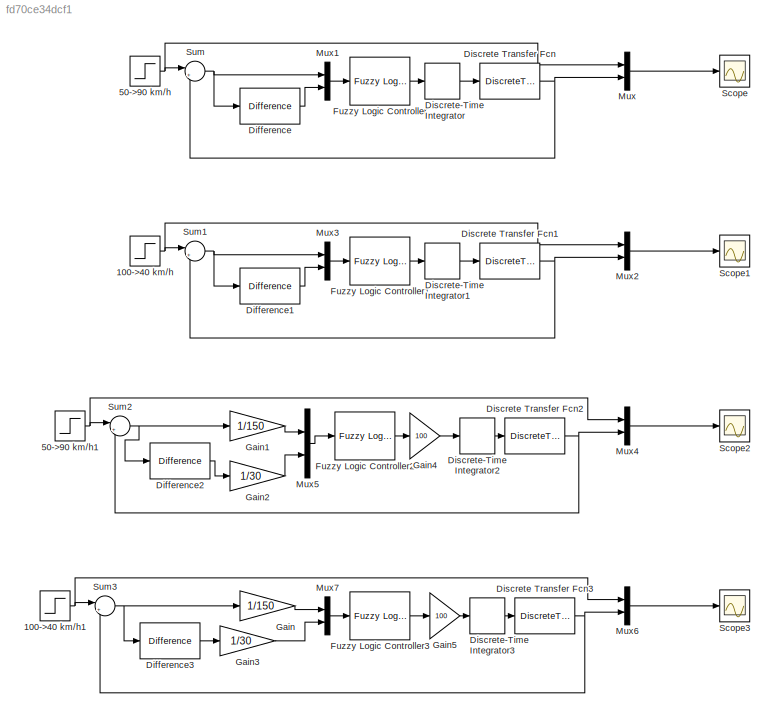
MODEL slx_fd70ce34dcf1
KIND model
BLOCK [Step] 100->40 km//h
  After = 40
  Before = 100
  SampleTime = 1
BLOCK [Step] 100->40 km//h1
  After = 40
  Before = 100
  SampleTime = 1
BLOCK [Step] 50->90 km//h
  After = 90
  Before = 50
  SampleTime = 1
BLOCK [Step] 50->90 km//h1
  After = 90
  Before = 50
  SampleTime = 1
BLOCK [Reference] Difference  REF=simulink/Discrete/Difference
  DoSatur = off
  ICPrevInput = 0.0
  InputProcessing = Inherited
  LockScale = off
  OutDataType = fixdt(1, 16)
  OutDataTypeStr = Inherit: Inherit via internal rule
  OutMax = []
  OutMin = []
  OutScaling = 2^-10
  OutputDataTypeScalingMode = Inherit via internal rule
  Ports = [1, 1]
  RndMeth = Floor
  SourceBlock = simulink/Discrete/Difference
  SourceType = Difference
BLOCK [Reference] Difference1  REF=simulink/Discrete/Difference
  DoSatur = off
  ICPrevInput = 0.0
  InputProcessing = Inherited
  LockScale = off
  OutDataType = fixdt(1, 16)
  OutDataTypeStr = Inherit: Inherit via internal rule
  OutMax = []
  OutMin = []
  OutScaling = 2^-10
  OutputDataTypeScalingMode = Inherit via internal rule
  Ports = [1, 1]
  RndMeth = Floor
  SourceBlock = simulink/Discrete/Difference
  SourceType = Difference
BLOCK [Reference] Difference2  REF=simulink/Discrete/Difference
  DoSatur = off
  ICPrevInput = 0.0
  InputProcessing = Inherited
  LockScale = off
  OutDataType = fixdt(1, 16)
  OutDataTypeStr = Inherit: Inherit via internal rule
  OutMax = []
  OutMin = []
  OutScaling = 2^-10
  OutputDataTypeScalingMode = Inherit via internal rule
  Ports = [1, 1]
  RndMeth = Floor
  SourceBlock = simulink/Discrete/Difference
  SourceType = Difference
BLOCK [Reference] Difference3  REF=simulink/Discrete/Difference
  DoSatur = off
  ICPrevInput = 0.0
  InputProcessing = Inherited
  LockScale = off
  OutDataType = fixdt(1, 16)
  OutDataTypeStr = Inherit: Inherit via internal rule
  OutMax = []
  OutMin = []
  OutScaling = 2^-10
  OutputDataTypeScalingMode = Inherit via internal rule
  Ports = [1, 1]
  RndMeth = Floor
  SourceBlock = simulink/Discrete/Difference
  SourceType = Difference
BLOCK [DiscreteTransferFcn] Discrete Transfer Fcn
  Denominator = [1 -0.933]
  InputPortMap = u0
  Numerator = [0.133]
  Ports = [1, 1]
  SampleTime = 1
BLOCK [DiscreteTransferFcn] Discrete Transfer Fcn1
  Denominator = [1 -0.933]
  InputPortMap = u0
  Numerator = [0.133]
  Ports = [1, 1]
  SampleTime = 1
BLOCK [DiscreteTransferFcn] Discrete Transfer Fcn2
  Denominator = [1 -0.933]
  InputPortMap = u0
  Numerator = [0.133]
  Ports = [1, 1]
  SampleTime = 1
BLOCK [DiscreteTransferFcn] Discrete Transfer Fcn3
  Denominator = [1 -0.933]
  InputPortMap = u0
  Numerator = [0.133]
  Ports = [1, 1]
  SampleTime = 1
BLOCK [DiscreteIntegrator] Discrete-Time Integrator
  InitialConditionSetting = State (most efficient)
  Ports = [1, 1]
BLOCK [DiscreteIntegrator] Discrete-Time Integrator1
  InitialConditionSetting = State (most efficient)
  Ports = [1, 1]
BLOCK [DiscreteIntegrator] Discrete-Time Integrator2
  InitialConditionSetting = State (most efficient)
  Ports = [1, 1]
BLOCK [DiscreteIntegrator] Discrete-Time Integrator3
  InitialConditionSetting = State (most efficient)
  Ports = [1, 1]
BLOCK [Reference] Fuzzy Logic Controller  REF=fuzblock/Fuzzy Logic   (lib defined in mdl_858b3b3e7478)
Controller
  Ports = [1, 1]
  SourceBlock = fuzblock/Fuzzy Logic \nController
  SourceType = FIS
  fis = nieznormal
BLOCK [Reference] Fuzzy Logic Controller1  REF=fuzblock/Fuzzy Logic   (lib defined in mdl_858b3b3e7478)
Controller
  Ports = [1, 1]
  SourceBlock = fuzblock/Fuzzy Logic \nController
  SourceType = FIS
  fis = nieznormal
BLOCK [Reference] Fuzzy Logic Controller2  REF=fuzblock/Fuzzy Logic   (lib defined in mdl_858b3b3e7478)
Controller
  Ports = [1, 1]
  SourceBlock = fuzblock/Fuzzy Logic \nController
  SourceType = FIS
  fis = znormal
BLOCK [Reference] Fuzzy Logic Controller3  REF=fuzblock/Fuzzy Logic   (lib defined in mdl_858b3b3e7478)
Controller
  Ports = [1, 1]
  SourceBlock = fuzblock/Fuzzy Logic \nController
  SourceType = FIS
  fis = znormal
BLOCK [Gain] Gain
  Gain = 1/150
  OutDataTypeStr = Inherit: Inherit via internal rule
  ParamDataTypeStr = Inherit: Inherit via internal rule
  SaturateOnIntegerOverflow = off
BLOCK [Gain] Gain1
  Gain = 1/150
  OutDataTypeStr = Inherit: Inherit via internal rule
  ParamDataTypeStr = Inherit: Inherit via internal rule
  SaturateOnIntegerOverflow = off
BLOCK [Gain] Gain2
  Gain = 1/30
  OutDataTypeStr = Inherit: Inherit via internal rule
  ParamDataTypeStr = Inherit: Inherit via internal rule
  SaturateOnIntegerOverflow = off
BLOCK [Gain] Gain3
  Gain = 1/30
  OutDataTypeStr = Inherit: Inherit via internal rule
  ParamDataTypeStr = Inherit: Inherit via internal rule
  SaturateOnIntegerOverflow = off
BLOCK [Gain] Gain4
  Gain = 100
  OutDataTypeStr = Inherit: Inherit via internal rule
  ParamDataTypeStr = Inherit: Inherit via internal rule
  SaturateOnIntegerOverflow = off
BLOCK [Gain] Gain5
  Gain = 100
  OutDataTypeStr = Inherit: Inherit via internal rule
  ParamDataTypeStr = Inherit: Inherit via internal rule
  SaturateOnIntegerOverflow = off
BLOCK [Mux] Mux
  DisplayOption = bar
  Inputs = 2
  Ports = [2, 1]
BLOCK [Mux] Mux1
  DisplayOption = bar
  Inputs = 2
  Ports = [2, 1]
BLOCK [Mux] Mux2
  DisplayOption = bar
  Inputs = 2
  Ports = [2, 1]
BLOCK [Mux] Mux3
  DisplayOption = bar
  Inputs = 2
  Ports = [2, 1]
BLOCK [Mux] Mux4
  DisplayOption = bar
  Inputs = 2
  Ports = [2, 1]
BLOCK [Mux] Mux5
  DisplayOption = bar
  Inputs = 2
  Ports = [2, 1]
BLOCK [Mux] Mux6
  DisplayOption = bar
  Inputs = 2
  Ports = [2, 1]
BLOCK [Mux] Mux7
  DisplayOption = bar
  Inputs = 2
  Ports = [2, 1]
BLOCK [Scope] Scope
  Floating = off
  LegendLocations = 0.82165      0.9047     0.20269    0.042037
  NumInputPorts = 1
  Ports = [1]
  ShowLegends = on
BLOCK [Scope] Scope1
  Floating = off
  LegendLocations = 0.87175     0.90617     0.10491     0.04157
  NumInputPorts = 1
  Ports = [1]
  SaveName = ScopeData1
  ShowLegends = on
BLOCK [Scope] Scope2
  Floating = off
  LegendLocations = 0.74161     0.90386     0.21036    0.042037
  NumInputPorts = 1
  Ports = [1]
  SaveName = ScopeData2
  ShowLegends = on
BLOCK [Scope] Scope3
  Floating = off
  NumInputPorts = 1
  Ports = [1]
  SaveName = ScopeData3
  ShowLegends = on
BLOCK [Sum] Sum
  IconShape = round
  InputSameDT = off
  Inputs = |+-
  OutDataTypeStr = Inherit: Inherit via internal rule
  Ports = [2, 1]
  SaturateOnIntegerOverflow = off
BLOCK [Sum] Sum1
  IconShape = round
  InputSameDT = off
  Inputs = |+-
  OutDataTypeStr = Inherit: Inherit via internal rule
  Ports = [2, 1]
  SaturateOnIntegerOverflow = off
BLOCK [Sum] Sum2
  IconShape = round
  InputSameDT = off
  Inputs = |+-
  OutDataTypeStr = Inherit: Inherit via internal rule
  Ports = [2, 1]
  SaturateOnIntegerOverflow = off
BLOCK [Sum] Sum3
  IconShape = round
  InputSameDT = off
  Inputs = |+-
  OutDataTypeStr = Inherit: Inherit via internal rule
  Ports = [2, 1]
  SaturateOnIntegerOverflow = off
NET 100->40 km//h1:1 -> Mux6:1, Sum3:1
NET 100->40 km//h:1 -> Mux2:1, Sum1:1
NET 50->90 km//h1:1 -> Mux4:1, Sum2:1
NET 50->90 km//h:1 -> Mux:1, Sum:1
LINE Difference1:1 -> Mux3:2
LINE Difference2:1 -> Gain2:1
LINE Difference3:1 -> Gain3:1
LINE Difference:1 -> Mux1:2
NET Discrete Transfer Fcn1:1 -> Mux2:2, Sum1:2
NET Discrete Transfer Fcn2:1 -> Mux4:2, Sum2:2
NET Discrete Transfer Fcn3:1 -> Mux6:2, Sum3:2
NET Discrete Transfer Fcn:1 -> Mux:2, Sum:2
LINE Discrete-Time Integrator1:1 -> Discrete Transfer Fcn1:1
LINE Discrete-Time Integrator2:1 -> Discrete Transfer Fcn2:1
LINE Discrete-Time Integrator3:1 -> Discrete Transfer Fcn3:1
LINE Discrete-Time Integrator:1 -> Discrete Transfer Fcn:1
LINE Fuzzy Logic Controller1:1 -> Discrete-Time Integrator1:1
LINE Fuzzy Logic Controller2:1 -> Gain4:1
LINE Fuzzy Logic Controller3:1 -> Gain5:1
LINE Fuzzy Logic Controller:1 -> Discrete-Time Integrator:1
LINE Gain1:1 -> Mux5:1
LINE Gain2:1 -> Mux5:2
LINE Gain3:1 -> Mux7:2
LINE Gain4:1 -> Discrete-Time Integrator2:1
LINE Gain5:1 -> Discrete-Time Integrator3:1
LINE Gain:1 -> Mux7:1
LINE Mux1:1 -> Fuzzy Logic Controller:1
LINE Mux2:1 -> Scope1:1
LINE Mux3:1 -> Fuzzy Logic Controller1:1
LINE Mux4:1 -> Scope2:1
LINE Mux5:1 -> Fuzzy Logic Controller2:1
LINE Mux6:1 -> Scope3:1
LINE Mux7:1 -> Fuzzy Logic Controller3:1
LINE Mux:1 -> Scope:1
NET Sum1:1 -> Difference1:1, Mux3:1
NET Sum2:1 -> Difference2:1, Gain1:1
NET Sum3:1 -> Difference3:1, Gain:1
NET Sum:1 -> Difference:1, Mux1:1
note: NET lines group one-source signal fan-out (src -> all destinations, sorted); 1:1 wires keep LINE
